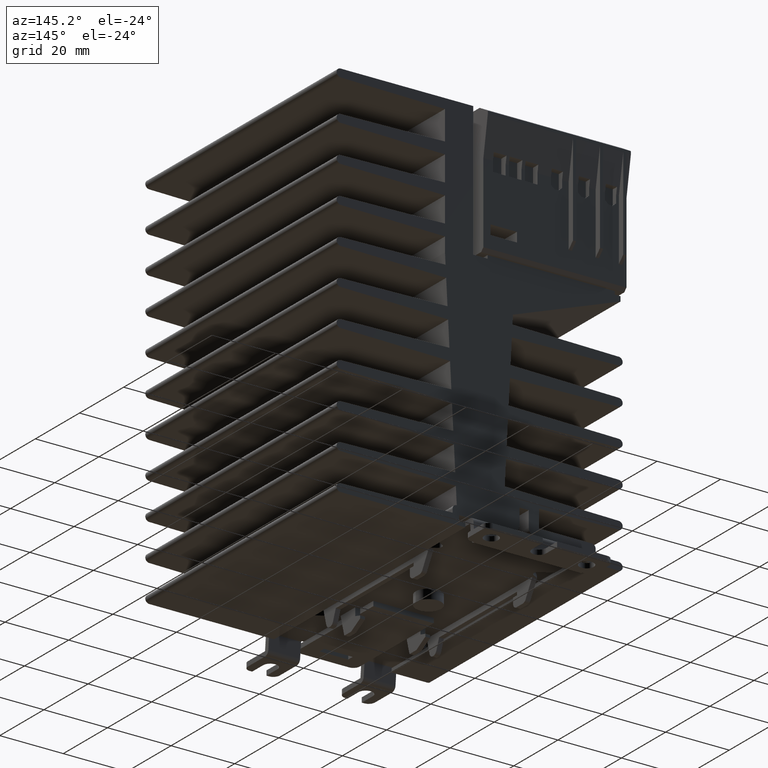
[diagram: clean part render]
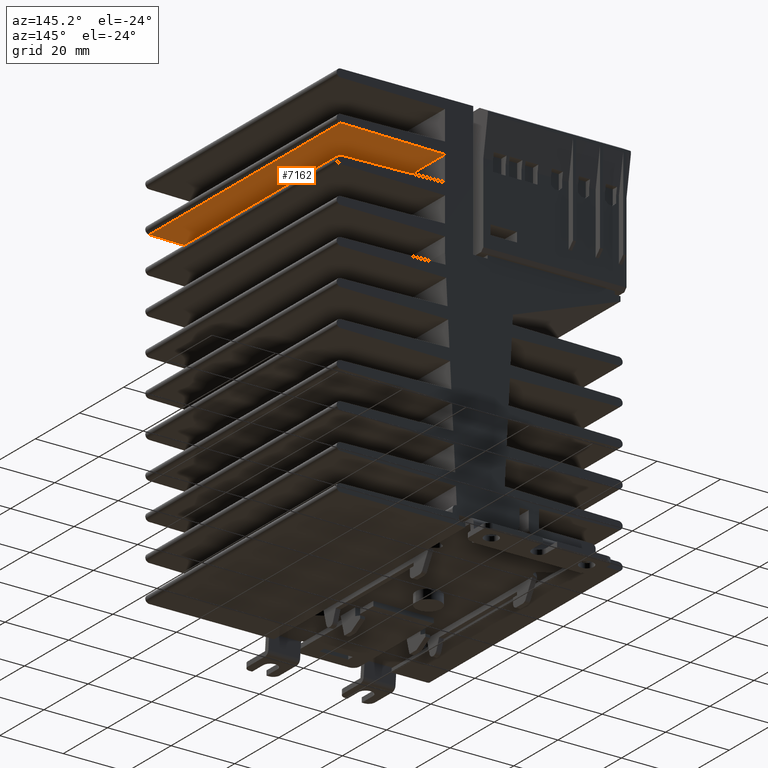
[diagram: same view with one face highlighted and labeled with its STEP entity id]
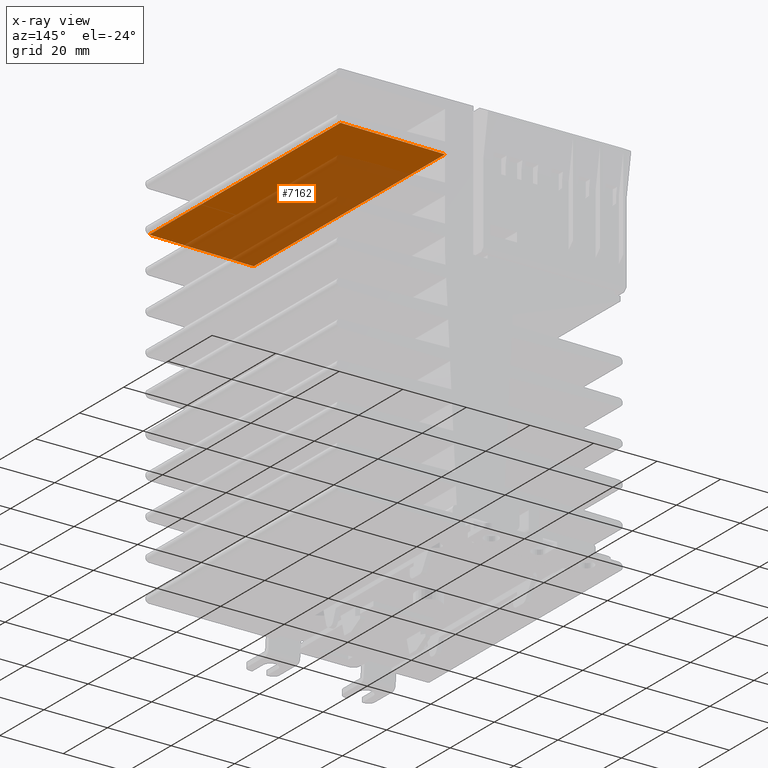
[diagram: x-ray of the same camera — body ghosted, the highlighted face saturated]
A machine part, auxiliary view. The second image highlights one B-rep face of the part: STEP entity #7162.
The next image is the same camera in x-ray: the body ghosted, the highlighted face saturated — about 54% of this face is hidden behind the body in this view.
In plain terms, the highlighted planar face has unit normal (0.0175, 0, -0.9998).
Its self-contained STEP definition (entity closure, byte-faithful):
#210 = EDGE_CURVE ( 'NONE', #12031, #8154, #12198, .T. ) ;
#295 = DIRECTION ( 'NONE',  ( -0.9998476951563912696, 0.000000000000000000, -0.01745240643728335553 ) ) ;
#436 = CARTESIAN_POINT ( 'NONE',  ( 2.609126594804984212, -1.704724409448818978, 1.009850015002145662 ) ) ;
#731 = VECTOR ( 'NONE', #3981, 39.37007874015748143 ) ;
#986 = EDGE_CURVE ( 'NONE', #1250, #12031, #1847, .T. ) ;
#1216 = VERTEX_POINT ( 'NONE', #14093 ) ;
#1250 = VERTEX_POINT ( 'NONE', #3461 ) ;
#1811 = EDGE_CURVE ( 'NONE', #1216, #1250, #4318, .T. ) ;
#1847 = LINE ( 'NONE', #2776, #731 ) ;
#2244 = CARTESIAN_POINT ( 'NONE',  ( 1.314960629921259949, 0.000000000000000000, 0.9872602640572125665 ) ) ;
#2271 = CARTESIAN_POINT ( 'NONE',  ( 2.609126594804984212, -1.704724409448818978, 1.009850015002147661 ) ) ;
#2408 = PLANE ( 'NONE',  #2455 ) ;
#2455 = AXIS2_PLACEMENT_3D ( 'NONE', #2271, #13397, #10038 ) ;
#2776 = CARTESIAN_POINT ( 'NONE',  ( 2.609126594804984212, -1.704724409448818978, 1.009850015002147661 ) ) ;
#3088 = DIRECTION ( 'NONE',  ( 0.000000000000000000, -1.000000000000000000, 0.000000000000000000 ) ) ;
#3461 = CARTESIAN_POINT ( 'NONE',  ( 2.609126594804984212, 1.704724409448818978, 1.009850015002147661 ) ) ;
#3528 = ORIENTED_EDGE ( 'NONE', *, *, #210, .T. ) ;
#3981 = DIRECTION ( 'NONE',  ( 0.000000000000000000, -1.000000000000000000, 0.000000000000000000 ) ) ;
#4318 = LINE ( 'NONE', #4394, #9623 ) ;
#4343 = VECTOR ( 'NONE', #295, 39.37007874015748143 ) ;
#4394 = CARTESIAN_POINT ( 'NONE',  ( 2.609126594804984212, 1.704724409448818978, 1.009850015002147661 ) ) ;
#4444 = LINE ( 'NONE', #2244, #9600 ) ;
#4868 = EDGE_LOOP ( 'NONE', ( #7817, #3528, #13174, #7655 ) ) ;
#6010 = CARTESIAN_POINT ( 'NONE',  ( 1.314960629921259949, -1.704724409448818978, 0.9872602640572125665 ) ) ;
#7149 = CARTESIAN_POINT ( 'NONE',  ( 2.609126594804984212, -1.704724409448818978, 1.009850015002147661 ) ) ;
#7162 = ADVANCED_FACE ( 'NONE', ( #12045 ), #2408, .T. ) ;
#7655 = ORIENTED_EDGE ( 'NONE', *, *, #1811, .T. ) ;
#7817 = ORIENTED_EDGE ( 'NONE', *, *, #986, .T. ) ;
#8154 = VERTEX_POINT ( 'NONE', #6010 ) ;
#8735 = DIRECTION ( 'NONE',  ( 0.9998476951563912696, 0.000000000000000000, 0.01745240643728400431 ) ) ;
#9600 = VECTOR ( 'NONE', #3088, 39.37007874015748143 ) ;
#9623 = VECTOR ( 'NONE', #8735, 39.37007874015748143 ) ;
#10038 = DIRECTION ( 'NONE',  ( 0.9998476951563912696, 0.000000000000000000, 0.01745240643728400431 ) ) ;
#10473 = EDGE_CURVE ( 'NONE', #1216, #8154, #4444, .T. ) ;
#12031 = VERTEX_POINT ( 'NONE', #7149 ) ;
#12045 = FACE_OUTER_BOUND ( 'NONE', #4868, .T. ) ;
#12198 = LINE ( 'NONE', #436, #4343 ) ;
#13174 = ORIENTED_EDGE ( 'NONE', *, *, #10473, .F. ) ;
#13397 = DIRECTION ( 'NONE',  ( 0.01745240643728400431, 0.000000000000000000, -0.9998476951563912696 ) ) ;
#14093 = CARTESIAN_POINT ( 'NONE',  ( 1.314960629921259949, 1.704724409448818978, 0.9872602640572125665 ) ) ;